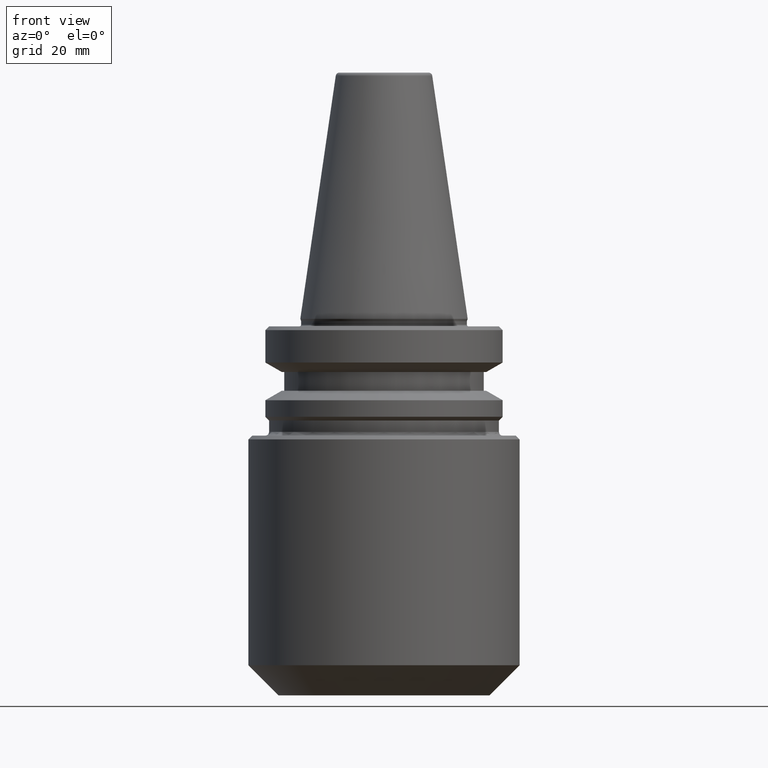
[diagram: clean part render]
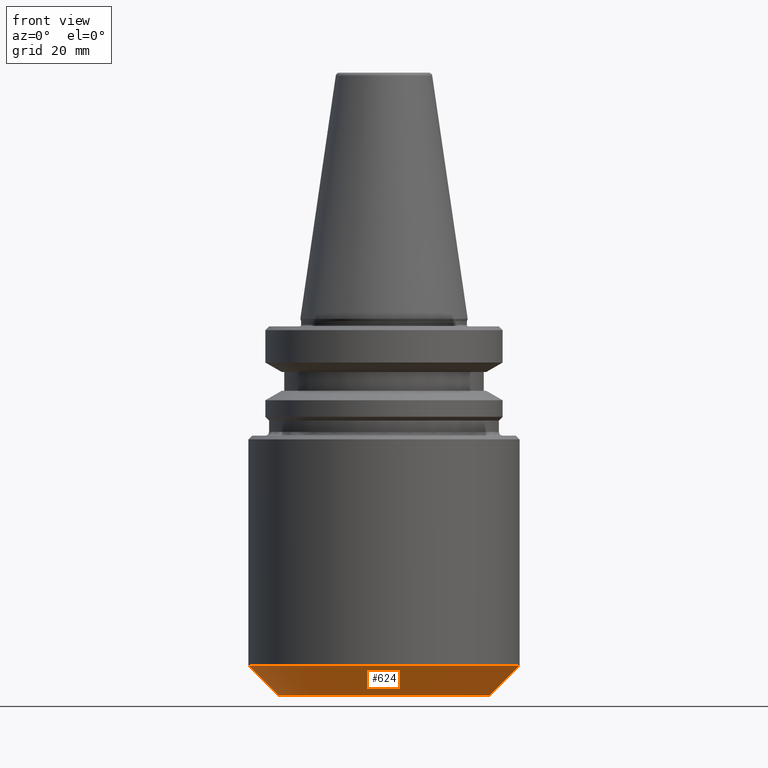
[diagram: same view with one face highlighted and labeled with its STEP entity id]
A machine part, front view. The second image highlights one B-rep face of the part: STEP entity #624.
In plain terms, the highlighted conical surface has half-angle 45 deg.
Its self-contained STEP definition (entity closure, byte-faithful):
#11 = DIRECTION ( 'NONE',  ( 1.000000000000000000, 0.0000000000000000000, 0.0000000000000000000 ) ) ;
#32 = DIRECTION ( 'NONE',  ( -0.7071067811865474600, 8.659560562354931600E-017, 0.7071067811865475700 ) ) ;
#52 = DIRECTION ( 'NONE',  ( 1.000000000000000000, 0.0000000000000000000, 0.0000000000000000000 ) ) ;
#56 = EDGE_CURVE ( 'NONE', #1065, #446, #764, .T. ) ;
#72 = EDGE_LOOP ( 'NONE', ( #867, #268, #187, #875 ) ) ;
#99 = CARTESIAN_POINT ( 'NONE',  ( -28.00000000000002500, 3.918869757271527100E-015, -99.99999999999980100 ) ) ;
#134 = VERTEX_POINT ( 'NONE', #508 ) ;
#187 = ORIENTED_EDGE ( 'NONE', *, *, #1111, .T. ) ;
#231 = LINE ( 'NONE', #558, #908 ) ;
#268 = ORIENTED_EDGE ( 'NONE', *, *, #56, .T. ) ;
#287 = CARTESIAN_POINT ( 'NONE',  ( 0.0000000000000000000, 0.0000000000000000000, -99.99999999999980100 ) ) ;
#402 = AXIS2_PLACEMENT_3D ( 'NONE', #1075, #536, #11 ) ;
#403 = VERTEX_POINT ( 'NONE', #556 ) ;
#446 = VERTEX_POINT ( 'NONE', #1067 ) ;
#453 = CARTESIAN_POINT ( 'NONE',  ( 28.00000000000002500, 0.0000000000000000000, -99.99999999999980100 ) ) ;
#471 = FACE_OUTER_BOUND ( 'NONE', #72, .T. ) ;
#508 = CARTESIAN_POINT ( 'NONE',  ( 35.99999999999992200, 0.0000000000000000000, -91.99999999999990100 ) ) ;
#536 = DIRECTION ( 'NONE',  ( -0.0000000000000000000, -0.0000000000000000000, 1.000000000000000000 ) ) ;
#549 = DIRECTION ( 'NONE',  ( -0.0000000000000000000, -0.0000000000000000000, 1.000000000000000000 ) ) ;
#556 = CARTESIAN_POINT ( 'NONE',  ( -35.99999999999992200, 4.408728476930462200E-015, -91.99999999999990100 ) ) ;
#558 = CARTESIAN_POINT ( 'NONE',  ( -28.00000000000002500, 3.429011037612592000E-015, -99.99999999999980100 ) ) ;
#575 = DIRECTION ( 'NONE',  ( -0.0000000000000000000, -0.0000000000000000000, 1.000000000000000000 ) ) ;
#624 = ADVANCED_FACE ( 'NONE', ( #471 ), #653, .T. ) ;
#626 = VECTOR ( 'NONE', #716, 1000.000000000000000 ) ;
#653 = CONICAL_SURFACE ( 'NONE', #927, 28.00000000000002500, 0.7853981633974482800 ) ;
#656 = LINE ( 'NONE', #453, #626 ) ;
#691 = DIRECTION ( 'NONE',  ( 1.000000000000000000, 0.0000000000000000000, 0.0000000000000000000 ) ) ;
#716 = DIRECTION ( 'NONE',  ( 0.7071067811865474600, 0.0000000000000000000, 0.7071067811865475700 ) ) ;
#746 = EDGE_CURVE ( 'NONE', #403, #134, #806, .T. ) ;
#764 = CIRCLE ( 'NONE', #856, 28.00000000000002500 ) ;
#806 = CIRCLE ( 'NONE', #402, 35.99999999999992200 ) ;
#847 = EDGE_CURVE ( 'NONE', #1065, #403, #231, .T. ) ;
#856 = AXIS2_PLACEMENT_3D ( 'NONE', #287, #549, #691 ) ;
#867 = ORIENTED_EDGE ( 'NONE', *, *, #847, .F. ) ;
#875 = ORIENTED_EDGE ( 'NONE', *, *, #746, .F. ) ;
#908 = VECTOR ( 'NONE', #32, 1000.000000000000000 ) ;
#927 = AXIS2_PLACEMENT_3D ( 'NONE', #1029, #575, #52 ) ;
#1029 = CARTESIAN_POINT ( 'NONE',  ( 0.0000000000000000000, 0.0000000000000000000, -99.99999999999980100 ) ) ;
#1065 = VERTEX_POINT ( 'NONE', #99 ) ;
#1067 = CARTESIAN_POINT ( 'NONE',  ( 28.00000000000002500, 0.0000000000000000000, -99.99999999999980100 ) ) ;
#1075 = CARTESIAN_POINT ( 'NONE',  ( 0.0000000000000000000, 0.0000000000000000000, -91.99999999999990100 ) ) ;
#1111 = EDGE_CURVE ( 'NONE', #446, #134, #656, .T. ) ;